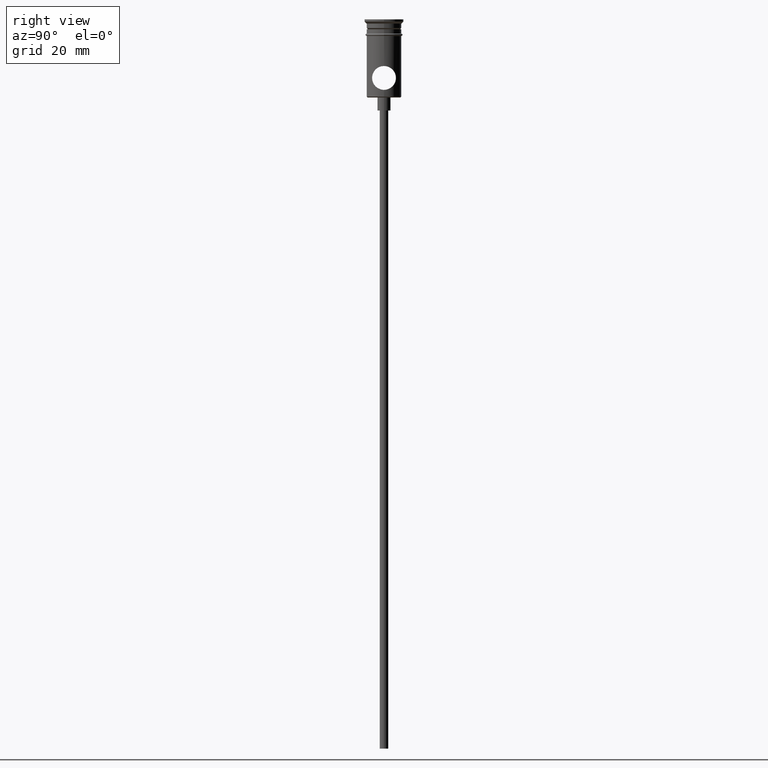
[diagram: clean part render]
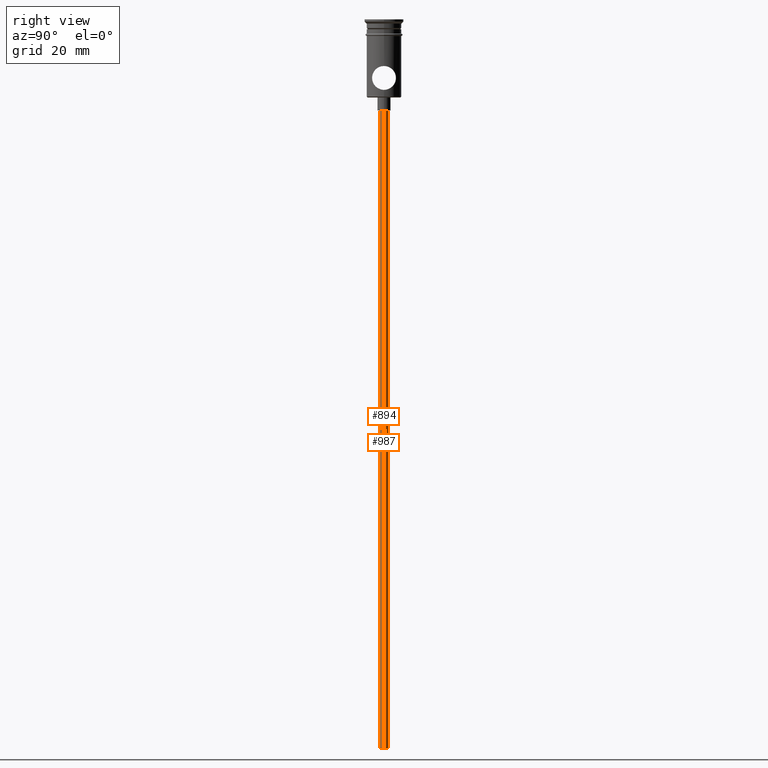
[diagram: same view with one multi-face feature highlighted, each face labeled with its STEP entity id]
A machine part, right view. The highlighted faces form ONE feature: a constant-radius fillet chain: 2 tangent blend faces with common blend radius 1 mm. The faces share edges in the B-rep.
Their STEP definitions:
[1] entity #894 (Cylinder):
#11 = AXIS2_PLACEMENT_3D ( 'NONE', #1172, #527, #962 ) ;
#79 = CARTESIAN_POINT ( 'NONE',  ( -0.9999999999999997780, 1.224646799147352961E-16, -167.9999999999999716 ) ) ;
#93 = CARTESIAN_POINT ( 'NONE',  ( -0.9999999999999997780, 1.224646799147352961E-16, -20.99999999999999645 ) ) ;
#102 = LINE ( 'NONE', #846, #645 ) ;
#238 = VERTEX_POINT ( 'NONE', #79 ) ;
#243 = ORIENTED_EDGE ( 'NONE', *, *, #1102, .T. ) ;
#259 = CARTESIAN_POINT ( 'NONE',  ( 0.9999999999999997780, 0.000000000000000000, -167.9999999999999716 ) ) ;
#262 = CARTESIAN_POINT ( 'NONE',  ( 0.9999999999999997780, 0.000000000000000000, -20.99999999999999645 ) ) ;
#315 = VERTEX_POINT ( 'NONE', #996 ) ;
#351 = DIRECTION ( 'NONE',  ( -0.000000000000000000, -0.000000000000000000, 1.000000000000000000 ) ) ;
#366 = DIRECTION ( 'NONE',  ( -0.000000000000000000, -0.000000000000000000, 1.000000000000000000 ) ) ;
#374 = FACE_OUTER_BOUND ( 'NONE', #491, .T. ) ;
#435 = CARTESIAN_POINT ( 'NONE',  ( 0.000000000000000000, 0.000000000000000000, -20.99999999999999645 ) ) ;
#462 = CYLINDRICAL_SURFACE ( 'NONE', #1329, 0.9999999999999997780 ) ;
#491 = EDGE_LOOP ( 'NONE', ( #1155, #586, #1113, #243 ) ) ;
#497 = EDGE_CURVE ( 'NONE', #315, #238, #560, .T. ) ;
#527 = DIRECTION ( 'NONE',  ( 0.000000000000000000, 0.000000000000000000, -1.000000000000000000 ) ) ;
#560 = CIRCLE ( 'NONE', #11, 0.9999999999999997780 ) ;
#586 = ORIENTED_EDGE ( 'NONE', *, *, #497, .F. ) ;
#613 = DIRECTION ( 'NONE',  ( -0.000000000000000000, -0.000000000000000000, 1.000000000000000000 ) ) ;
#645 = VECTOR ( 'NONE', #613, 1000.000000000000000 ) ;
#647 = AXIS2_PLACEMENT_3D ( 'NONE', #435, #1084, #745 ) ;
#709 = EDGE_CURVE ( 'NONE', #238, #1027, #102, .T. ) ;
#745 = DIRECTION ( 'NONE',  ( -1.000000000000000000, 0.000000000000000000, 0.000000000000000000 ) ) ;
#792 = CARTESIAN_POINT ( 'NONE',  ( 0.000000000000000000, 0.000000000000000000, -167.9999999999999716 ) ) ;
#846 = CARTESIAN_POINT ( 'NONE',  ( -0.9999999999999997780, 1.224646799147352961E-16, -167.9999999999999716 ) ) ;
#868 = EDGE_CURVE ( 'NONE', #315, #1270, #1332, .T. ) ;
#893 = CIRCLE ( 'NONE', #647, 0.9999999999999997780 ) ;
#894 = ADVANCED_FACE ( 'NONE', ( #374 ), #462, .T. ) ;
#962 = DIRECTION ( 'NONE',  ( -1.000000000000000000, 0.000000000000000000, 0.000000000000000000 ) ) ;
#996 = CARTESIAN_POINT ( 'NONE',  ( 0.9999999999999997780, 0.000000000000000000, -167.9999999999999716 ) ) ;
#1027 = VERTEX_POINT ( 'NONE', #93 ) ;
#1055 = VECTOR ( 'NONE', #351, 1000.000000000000000 ) ;
#1084 = DIRECTION ( 'NONE',  ( 0.000000000000000000, 0.000000000000000000, -1.000000000000000000 ) ) ;
#1102 = EDGE_CURVE ( 'NONE', #1270, #1027, #893, .T. ) ;
#1113 = ORIENTED_EDGE ( 'NONE', *, *, #868, .T. ) ;
#1155 = ORIENTED_EDGE ( 'NONE', *, *, #709, .F. ) ;
#1172 = CARTESIAN_POINT ( 'NONE',  ( 0.000000000000000000, 0.000000000000000000, -167.9999999999999716 ) ) ;
#1223 = DIRECTION ( 'NONE',  ( 1.000000000000000000, 0.000000000000000000, 0.000000000000000000 ) ) ;
#1270 = VERTEX_POINT ( 'NONE', #262 ) ;
#1329 = AXIS2_PLACEMENT_3D ( 'NONE', #792, #366, #1223 ) ;
#1332 = LINE ( 'NONE', #259, #1055 ) ;
[2] entity #987 (Cylinder):
#79 = CARTESIAN_POINT ( 'NONE',  ( -0.9999999999999997780, 1.224646799147352961E-16, -167.9999999999999716 ) ) ;
#93 = CARTESIAN_POINT ( 'NONE',  ( -0.9999999999999997780, 1.224646799147352961E-16, -20.99999999999999645 ) ) ;
#102 = LINE ( 'NONE', #846, #645 ) ;
#189 = CARTESIAN_POINT ( 'NONE',  ( 0.000000000000000000, 0.000000000000000000, -20.99999999999999645 ) ) ;
#238 = VERTEX_POINT ( 'NONE', #79 ) ;
#259 = CARTESIAN_POINT ( 'NONE',  ( 0.9999999999999997780, 0.000000000000000000, -167.9999999999999716 ) ) ;
#261 = ORIENTED_EDGE ( 'NONE', *, *, #610, .F. ) ;
#262 = CARTESIAN_POINT ( 'NONE',  ( 0.9999999999999997780, 0.000000000000000000, -20.99999999999999645 ) ) ;
#284 = FACE_OUTER_BOUND ( 'NONE', #564, .T. ) ;
#292 = CARTESIAN_POINT ( 'NONE',  ( 0.000000000000000000, 0.000000000000000000, -167.9999999999999716 ) ) ;
#315 = VERTEX_POINT ( 'NONE', #996 ) ;
#329 = AXIS2_PLACEMENT_3D ( 'NONE', #292, #830, #1047 ) ;
#351 = DIRECTION ( 'NONE',  ( -0.000000000000000000, -0.000000000000000000, 1.000000000000000000 ) ) ;
#352 = DIRECTION ( 'NONE',  ( -1.000000000000000000, 0.000000000000000000, 0.000000000000000000 ) ) ;
#512 = AXIS2_PLACEMENT_3D ( 'NONE', #569, #1118, #352 ) ;
#564 = EDGE_LOOP ( 'NONE', ( #261, #1089, #1349, #912 ) ) ;
#569 = CARTESIAN_POINT ( 'NONE',  ( 0.000000000000000000, 0.000000000000000000, -167.9999999999999716 ) ) ;
#610 = EDGE_CURVE ( 'NONE', #238, #315, #890, .T. ) ;
#613 = DIRECTION ( 'NONE',  ( -0.000000000000000000, -0.000000000000000000, 1.000000000000000000 ) ) ;
#632 = DIRECTION ( 'NONE',  ( 0.000000000000000000, 0.000000000000000000, -1.000000000000000000 ) ) ;
#645 = VECTOR ( 'NONE', #613, 1000.000000000000000 ) ;
#701 = EDGE_CURVE ( 'NONE', #1027, #1270, #1261, .T. ) ;
#709 = EDGE_CURVE ( 'NONE', #238, #1027, #102, .T. ) ;
#830 = DIRECTION ( 'NONE',  ( -0.000000000000000000, -0.000000000000000000, 1.000000000000000000 ) ) ;
#846 = CARTESIAN_POINT ( 'NONE',  ( -0.9999999999999997780, 1.224646799147352961E-16, -167.9999999999999716 ) ) ;
#855 = DIRECTION ( 'NONE',  ( -1.000000000000000000, 0.000000000000000000, 0.000000000000000000 ) ) ;
#868 = EDGE_CURVE ( 'NONE', #315, #1270, #1332, .T. ) ;
#890 = CIRCLE ( 'NONE', #512, 0.9999999999999997780 ) ;
#912 = ORIENTED_EDGE ( 'NONE', *, *, #868, .F. ) ;
#987 = ADVANCED_FACE ( 'NONE', ( #284 ), #1052, .T. ) ;
#990 = AXIS2_PLACEMENT_3D ( 'NONE', #189, #632, #855 ) ;
#996 = CARTESIAN_POINT ( 'NONE',  ( 0.9999999999999997780, 0.000000000000000000, -167.9999999999999716 ) ) ;
#1027 = VERTEX_POINT ( 'NONE', #93 ) ;
#1047 = DIRECTION ( 'NONE',  ( 1.000000000000000000, 0.000000000000000000, 0.000000000000000000 ) ) ;
#1052 = CYLINDRICAL_SURFACE ( 'NONE', #329, 0.9999999999999997780 ) ;
#1055 = VECTOR ( 'NONE', #351, 1000.000000000000000 ) ;
#1089 = ORIENTED_EDGE ( 'NONE', *, *, #709, .T. ) ;
#1118 = DIRECTION ( 'NONE',  ( 0.000000000000000000, 0.000000000000000000, -1.000000000000000000 ) ) ;
#1261 = CIRCLE ( 'NONE', #990, 0.9999999999999997780 ) ;
#1270 = VERTEX_POINT ( 'NONE', #262 ) ;
#1332 = LINE ( 'NONE', #259, #1055 ) ;
#1349 = ORIENTED_EDGE ( 'NONE', *, *, #701, .T. ) ;